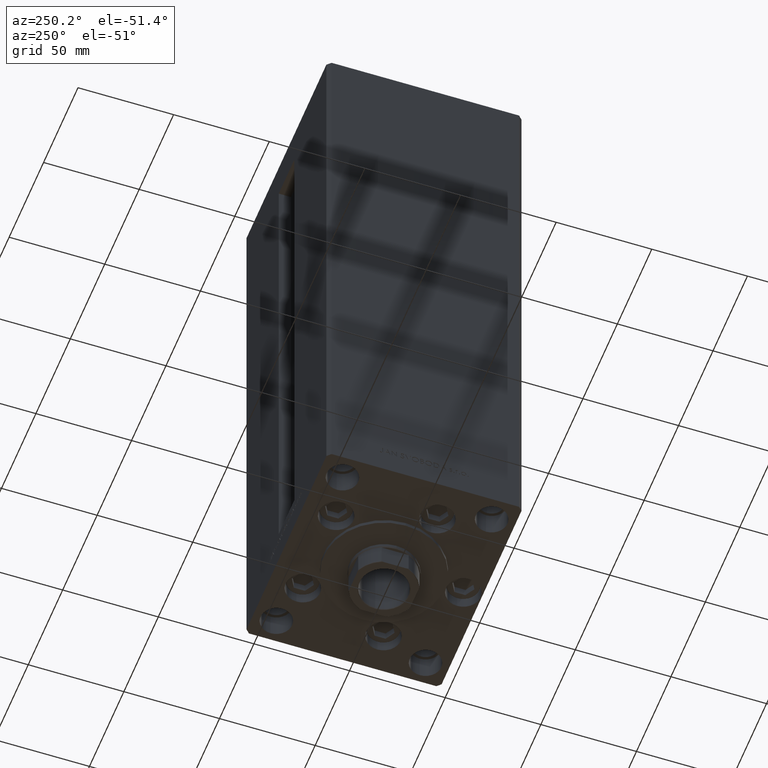
[diagram: clean part render]
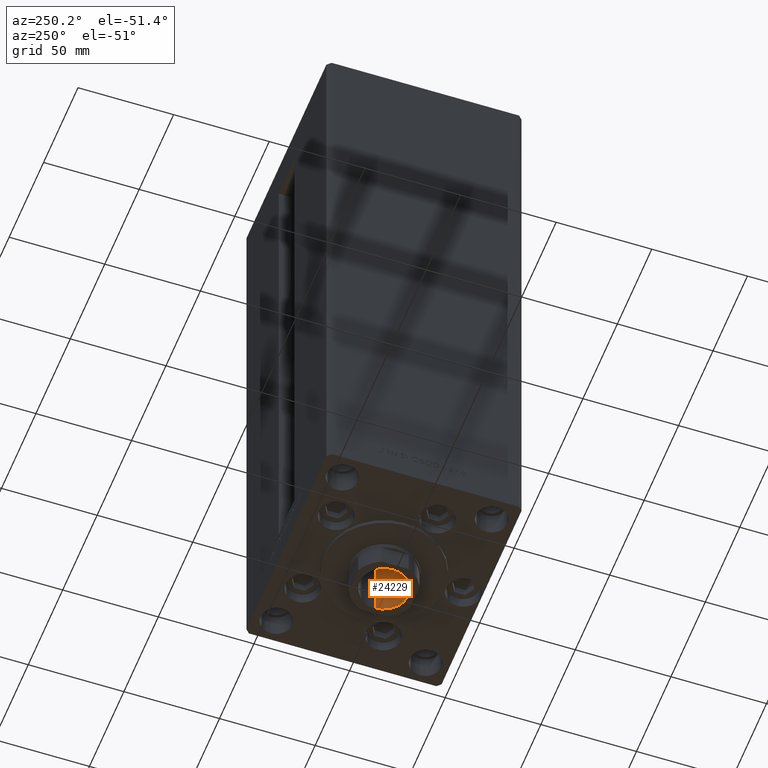
[diagram: same view with one face highlighted and labeled with its STEP entity id]
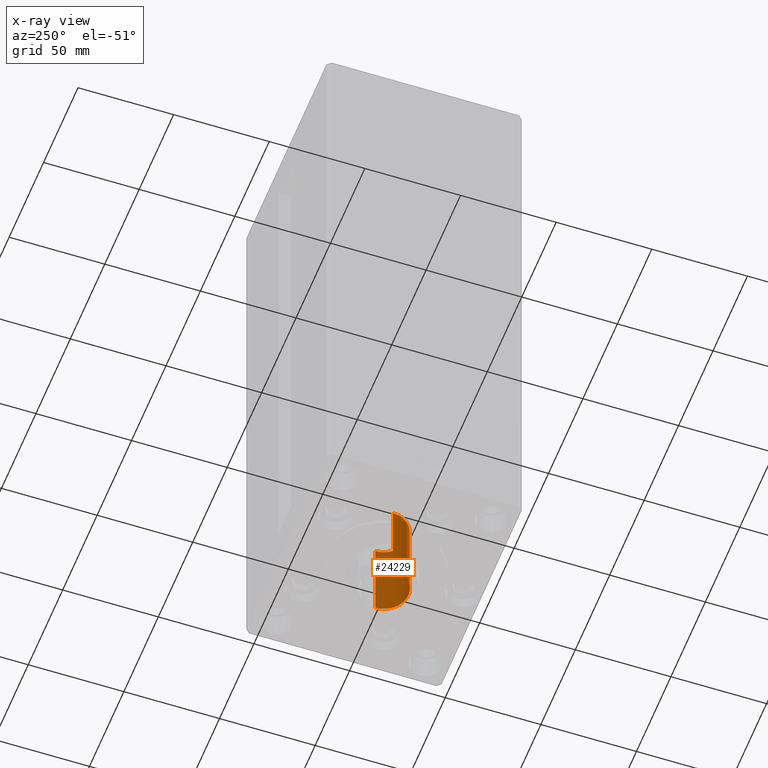
[diagram: x-ray of the same camera — body ghosted, the highlighted face saturated]
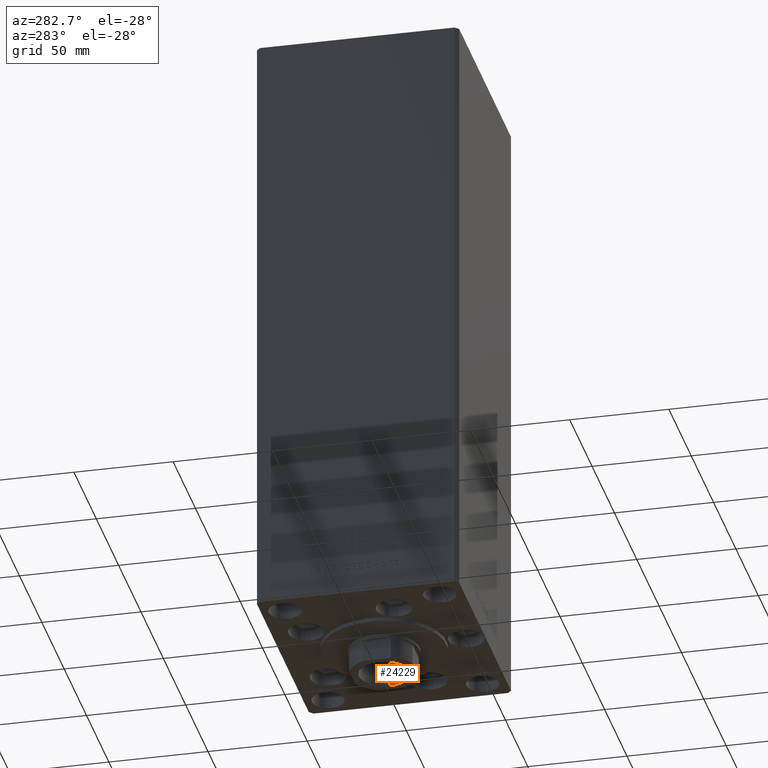
[diagram: same view with one face highlighted and labeled with its STEP entity id]
A machine part, auxiliary view. The second image highlights one B-rep face of the part: STEP entity #24229.
The next image is the same camera in x-ray: the body ghosted, the highlighted face saturated — about 11% of this face is hidden behind the body in this view.
A second angle (auxiliary view) of the same face is appended — the face is thin or edge-on in the first view.
In plain terms, the highlighted cylindrical surface (edge-blend (fillet) strip) has radius 12.75 mm, axis along (0, 0, -1).
Its self-contained STEP definition (entity closure, byte-faithful):
#2219 = EDGE_CURVE ( 'NONE', #11434, #25674, #22877, .T. ) ;
#2808 = DIRECTION ( 'NONE',  ( 1.000000000000000000, 0.000000000000000000, 0.000000000000000000 ) ) ;
#2821 = EDGE_LOOP ( 'NONE', ( #4519, #31215, #31201, #11472 ) ) ;
#2828 = AXIS2_PLACEMENT_3D ( 'NONE', #44748, #18397, #33816 ) ;
#4519 = ORIENTED_EDGE ( 'NONE', *, *, #13334, .F. ) ;
#6712 = DIRECTION ( 'NONE',  ( 1.000000000000000000, 0.000000000000000000, 0.000000000000000000 ) ) ;
#10433 = FACE_OUTER_BOUND ( 'NONE', #2821, .T. ) ;
#10876 = CARTESIAN_POINT ( 'NONE',  ( -12.74999999999999467, 1.561424668912874519E-15, 288.9499999999999318 ) ) ;
#11434 = VERTEX_POINT ( 'NONE', #21070 ) ;
#11472 = ORIENTED_EDGE ( 'NONE', *, *, #27430, .F. ) ;
#11543 = CARTESIAN_POINT ( 'NONE',  ( 12.74999999999999112, 0.000000000000000000, 244.2500000000000284 ) ) ;
#11843 = VECTOR ( 'NONE', #49096, 1000.000000000000000 ) ;
#13334 = EDGE_CURVE ( 'NONE', #11434, #32244, #17094, .T. ) ;
#17094 = CIRCLE ( 'NONE', #2828, 12.74999999999999112 ) ;
#18173 = CIRCLE ( 'NONE', #38791, 12.74999999999999467 ) ;
#18397 = DIRECTION ( 'NONE',  ( -0.000000000000000000, -0.000000000000000000, 1.000000000000000000 ) ) ;
#21070 = CARTESIAN_POINT ( 'NONE',  ( -12.74999999999999112, 1.561424668912874125E-15, 244.2500000000000284 ) ) ;
#21614 = DIRECTION ( 'NONE',  ( -0.000000000000000000, -0.000000000000000000, 1.000000000000000000 ) ) ;
#22014 = CARTESIAN_POINT ( 'NONE',  ( 12.74999999999999467, 0.000000000000000000, 289.2500000000000000 ) ) ;
#22254 = LINE ( 'NONE', #22014, #11843 ) ;
#22877 = LINE ( 'NONE', #30833, #39096 ) ;
#24229 = ADVANCED_FACE ( 'NONE', ( #10433 ), #28356, .F. ) ;
#25190 = EDGE_CURVE ( 'NONE', #25674, #27624, #18173, .T. ) ;
#25674 = VERTEX_POINT ( 'NONE', #10876 ) ;
#27430 = EDGE_CURVE ( 'NONE', #32244, #27624, #22254, .T. ) ;
#27624 = VERTEX_POINT ( 'NONE', #38159 ) ;
#28356 = CYLINDRICAL_SURFACE ( 'NONE', #34000, 12.74999999999999467 ) ;
#30833 = CARTESIAN_POINT ( 'NONE',  ( -12.74999999999999467, 1.561424668912874519E-15, 289.2500000000000000 ) ) ;
#31201 = ORIENTED_EDGE ( 'NONE', *, *, #25190, .T. ) ;
#31215 = ORIENTED_EDGE ( 'NONE', *, *, #2219, .T. ) ;
#32244 = VERTEX_POINT ( 'NONE', #11543 ) ;
#33619 = DIRECTION ( 'NONE',  ( 0.000000000000000000, 0.000000000000000000, 1.000000000000000000 ) ) ;
#33816 = DIRECTION ( 'NONE',  ( 1.000000000000000000, 0.000000000000000000, 0.000000000000000000 ) ) ;
#34000 = AXIS2_PLACEMENT_3D ( 'NONE', #47978, #21614, #6712 ) ;
#38159 = CARTESIAN_POINT ( 'NONE',  ( 12.74999999999999467, 0.000000000000000000, 288.9499999999999318 ) ) ;
#38791 = AXIS2_PLACEMENT_3D ( 'NONE', #44807, #33619, #2808 ) ;
#39096 = VECTOR ( 'NONE', #45993, 1000.000000000000000 ) ;
#44748 = CARTESIAN_POINT ( 'NONE',  ( 0.000000000000000000, 0.000000000000000000, 244.2500000000000284 ) ) ;
#44807 = CARTESIAN_POINT ( 'NONE',  ( 0.000000000000000000, 0.000000000000000000, 288.9499999999999318 ) ) ;
#45993 = DIRECTION ( 'NONE',  ( -0.000000000000000000, -0.000000000000000000, 1.000000000000000000 ) ) ;
#47978 = CARTESIAN_POINT ( 'NONE',  ( 0.000000000000000000, 0.000000000000000000, 289.2500000000000000 ) ) ;
#49096 = DIRECTION ( 'NONE',  ( -0.000000000000000000, -0.000000000000000000, 1.000000000000000000 ) ) ;